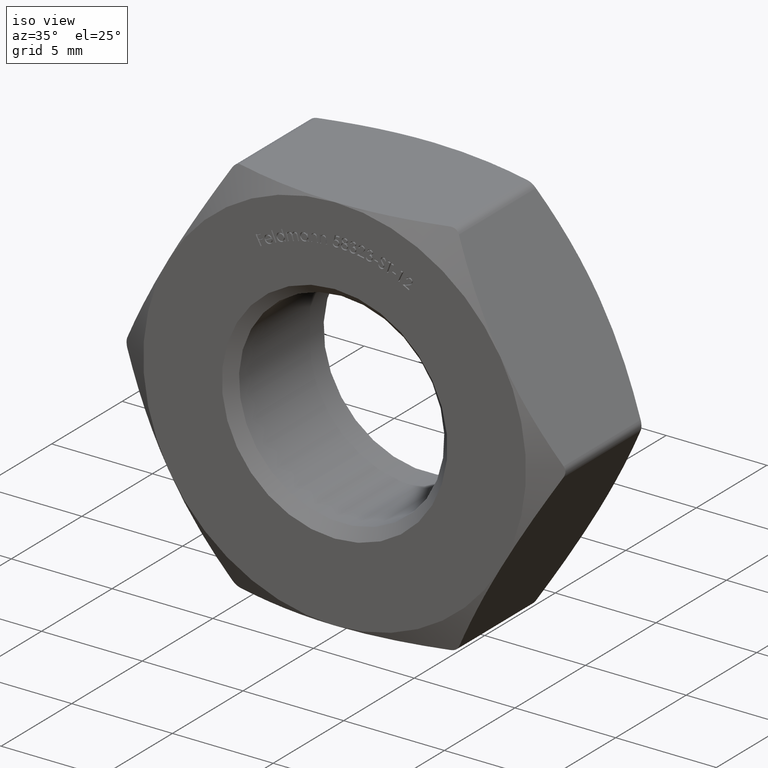
[diagram: clean part render]
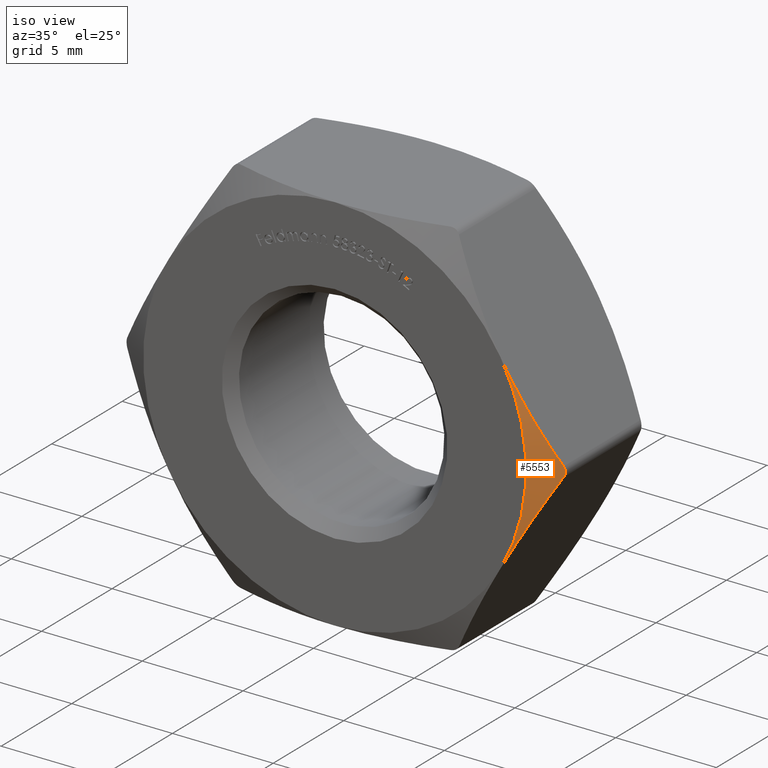
[diagram: same view with one face highlighted and labeled with its STEP entity id]
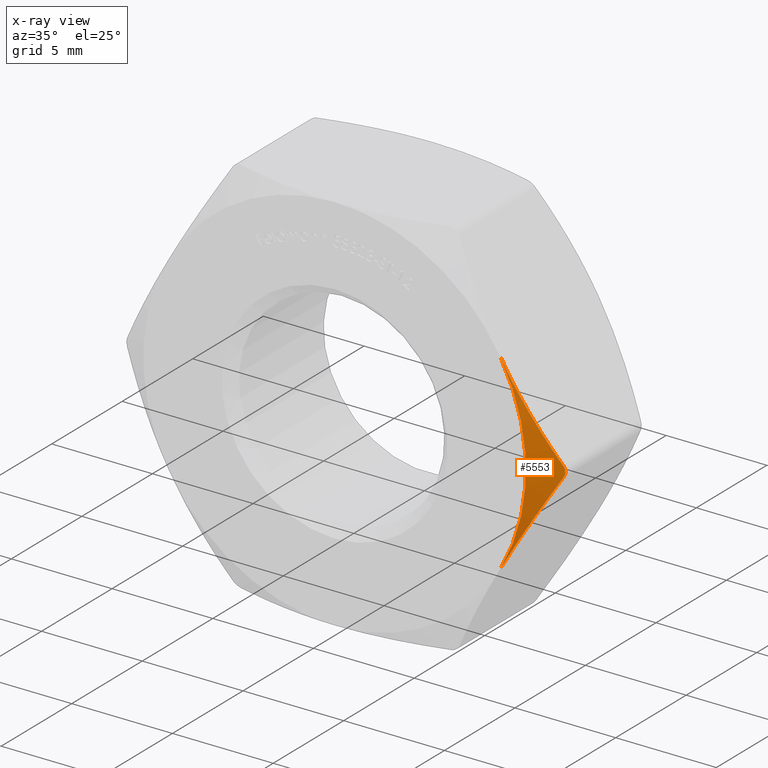
[diagram: x-ray of the same camera — body ghosted, the highlighted face saturated]
A machine part, iso view. The second image highlights one B-rep face of the part: STEP entity #5553.
The next image is the same camera in x-ray: the body ghosted, the highlighted face saturated — about 0% of this face is hidden behind the body in this view.
In plain terms, the highlighted conical surface has half-angle 60 deg.
Its self-contained STEP definition (entity closure, byte-faithful):
#588 = ORIENTED_EDGE ( 'NONE', *, *, #10016, .F. ) ;
#703 = CARTESIAN_POINT ( 'NONE',  ( 8.447481077618251177, -3.500000000000007994, 4.368533577588492811 ) ) ;
#1687 = CARTESIAN_POINT ( 'NONE',  ( 8.227241335952168555, -3.500000000000000000, -4.750000000000002665 ) ) ;
#1738 = CARTESIAN_POINT ( 'NONE',  ( 10.82531754730597662, -2.733161112797499737, -0.2499999999991389943 ) ) ;
#2476 = ORIENTED_EDGE ( 'NONE', *, *, #9031, .F. ) ;
#3195 = CARTESIAN_POINT ( 'NONE',  ( 9.106704621436126246, -3.412405536657729055, 3.226724906150326255 ) ) ;
#3583 = AXIS2_PLACEMENT_3D ( 'NONE', #6885, #8114, #5718 ) ;
#3751 = EDGE_CURVE ( 'NONE', #13010, #11627, #12283, .T. ) ;
#5396 = CARTESIAN_POINT ( 'NONE',  ( 10.82531754730547746, -2.733161112797775516, 0.2499999999999995837 ) ) ;
#5447 = CARTESIAN_POINT ( 'NONE',  ( 9.324286606578480630, -3.360768812073043232, 2.849861853072070517 ) ) ;
#5553 = ADVANCED_FACE ( 'NONE', ( #11336 ), #13979, .T. ) ;
#5693 = EDGE_CURVE ( 'NONE', #13010, #14251, #11981, .T. ) ;
#5718 = DIRECTION ( 'NONE',  ( 1.000000000000000000, 0.000000000000000000, 0.000000000000000000 ) ) ;
#5719 = B_SPLINE_CURVE_WITH_KNOTS ( 'NONE', 3,
 ( #12290, #703, #12662, #3195, #5447, #9098, #15032, #5396 ),
 .UNSPECIFIED., .F., .F.,
 ( 4, 2, 2, 4 ),
 ( 0.005549985383765659343, 0.006857997360578063292, 0.008166009337390468109, 0.01078203329101527601 ),
 .UNSPECIFIED. ) ;
#6006 = CARTESIAN_POINT ( 'NONE',  ( 9.106430400612969933, -3.427662757294320350, -3.227199870548522309 ) ) ;
#6768 = CARTESIAN_POINT ( 'NONE',  ( 10.89222553569159935, -2.696196110277377933, -0.08854287053725090617 ) ) ;
#6885 = CARTESIAN_POINT ( 'NONE',  ( 3.931690912932538010E-17, -3.500000000000000000, 0.000000000000000000 ) ) ;
#7131 = CARTESIAN_POINT ( 'NONE',  ( 9.971711193546212826, -3.161682687220365828, -1.728489574374661331 ) ) ;
#7378 = DIRECTION ( 'NONE',  ( -0.000000000000000000, -1.000000000000000000, -0.000000000000000000 ) ) ;
#8001 = CARTESIAN_POINT ( 'NONE',  ( 10.82531754730547746, -2.733161112797775516, 0.2499999999999995837 ) ) ;
#8114 = DIRECTION ( 'NONE',  ( -1.123340260837868025E-17, 1.000000000000000000, -0.000000000000000000 ) ) ;
#8372 = CARTESIAN_POINT ( 'NONE',  ( 8.669433656285473688, -3.500000000000009770, -3.984100434465927432 ) ) ;
#8463 = CARTESIAN_POINT ( 'NONE',  ( 10.82531754730597662, -2.733161112797499737, -0.2499999999991389943 ) ) ;
#9031 = EDGE_CURVE ( 'NONE', #13950, #11627, #5719, .T. ) ;
#9098 = CARTESIAN_POINT ( 'NONE',  ( 9.973320679115387222, -3.161040693212943786, 1.725701863594798713 ) ) ;
#9139 = EDGE_LOOP ( 'NONE', ( #14512, #14026, #2476, #588 ) ) ;
#10016 = EDGE_CURVE ( 'NONE', #14251, #13950, #14278, .T. ) ;
#10034 = AXIS2_PLACEMENT_3D ( 'NONE', #12164, #7378, #13414 ) ;
#10280 = CARTESIAN_POINT ( 'NONE',  ( 10.82531754730597662, -2.733161112797499737, -0.2499999999991389943 ) ) ;
#11336 = FACE_OUTER_BOUND ( 'NONE', #9139, .T. ) ;
#11516 = CARTESIAN_POINT ( 'NONE',  ( 10.86825100933161714, -2.709371315873999375, -0.1756370624258961621 ) ) ;
#11627 = VERTEX_POINT ( 'NONE', #12691 ) ;
#11976 = CARTESIAN_POINT ( 'NONE',  ( 10.40005022359209619, -2.968805358379082548, -0.9865846114704192038 ) ) ;
#11981 = B_SPLINE_CURVE_WITH_KNOTS ( 'NONE', 3,
 ( #8463, #11976, #7131, #6006, #8372, #13230 ),
 .UNSPECIFIED., .F., .F.,
 ( 4, 2, 4 ),
 ( 0.0002975922718325326182, 0.002923788827799092375, 0.005549985383765651537 ),
 .UNSPECIFIED. ) ;
#12164 = CARTESIAN_POINT ( 'NONE',  ( 3.931690912932538010E-17, -3.500000000000000000, 1.848398285660946747E-16 ) ) ;
#12283 = B_SPLINE_CURVE_WITH_KNOTS ( 'NONE', 3,
 ( #10280, #11516, #6768, #13762, #15126, #8001 ),
 .UNSPECIFIED., .F., .F.,
 ( 4, 2, 4 ),
 ( 9.643623209513129364E-16, 0.0002637781458279587522, 0.0005275562916549532150 ),
 .UNSPECIFIED. ) ;
#12290 = CARTESIAN_POINT ( 'NONE',  ( 8.227241335952170331, -3.500000000000000000, 4.749999999999999112 ) ) ;
#12662 = CARTESIAN_POINT ( 'NONE',  ( 8.668755713662406492, -3.482053147081709543, 3.985274665533703242 ) ) ;
#12691 = CARTESIAN_POINT ( 'NONE',  ( 10.82531754730547746, -2.733161112797775516, 0.2499999999999995837 ) ) ;
#13010 = VERTEX_POINT ( 'NONE', #1738 ) ;
#13230 = CARTESIAN_POINT ( 'NONE',  ( 8.227241335952168555, -3.500000000000000000, -4.750000000000002665 ) ) ;
#13414 = DIRECTION ( 'NONE',  ( 8.881784197001252323E-16, 0.000000000000000000, 1.000000000000000000 ) ) ;
#13762 = CARTESIAN_POINT ( 'NONE',  ( 10.89238375193495045, -2.696108957237655979, 0.08764487288724139014 ) ) ;
#13950 = VERTEX_POINT ( 'NONE', #14328 ) ;
#13979 = CONICAL_SURFACE ( 'NONE', #3583, 9.500000000000001776, 1.047197551196604071 ) ;
#14026 = ORIENTED_EDGE ( 'NONE', *, *, #3751, .T. ) ;
#14251 = VERTEX_POINT ( 'NONE', #1687 ) ;
#14278 = CIRCLE ( 'NONE', #10034, 9.500000000000001776 ) ;
#14328 = CARTESIAN_POINT ( 'NONE',  ( 8.227241335952170331, -3.500000000000000000, 4.749999999999999112 ) ) ;
#14512 = ORIENTED_EDGE ( 'NONE', *, *, #5693, .F. ) ;
#15032 = CARTESIAN_POINT ( 'NONE',  ( 10.40106991011710669, -2.968240341392044179, 0.9848184626013096743 ) ) ;
#15126 = CARTESIAN_POINT ( 'NONE',  ( 10.86826663802246529, -2.709362655883584381, 0.1756099927392921478 ) ) ;